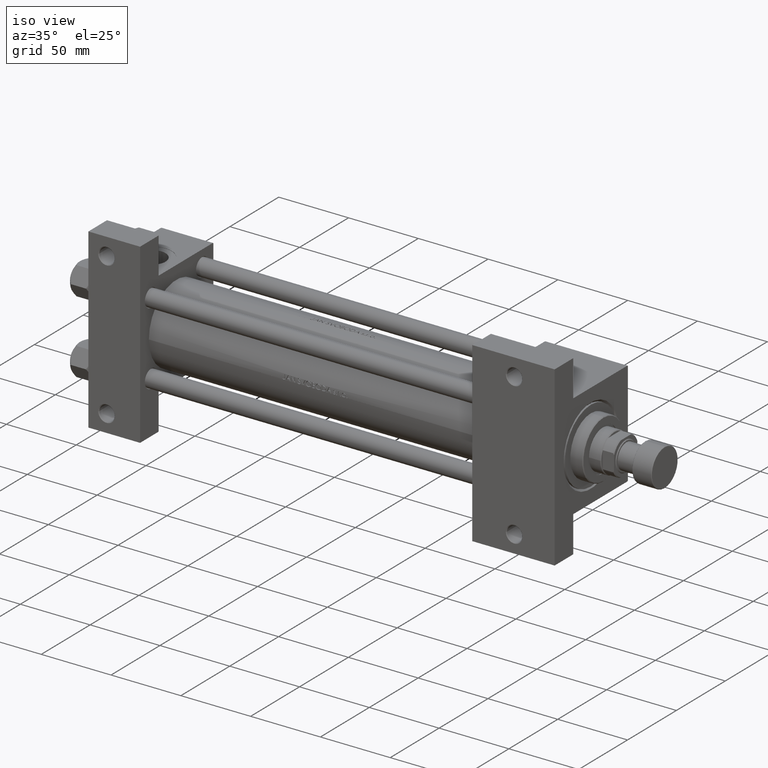
[diagram: clean part render]
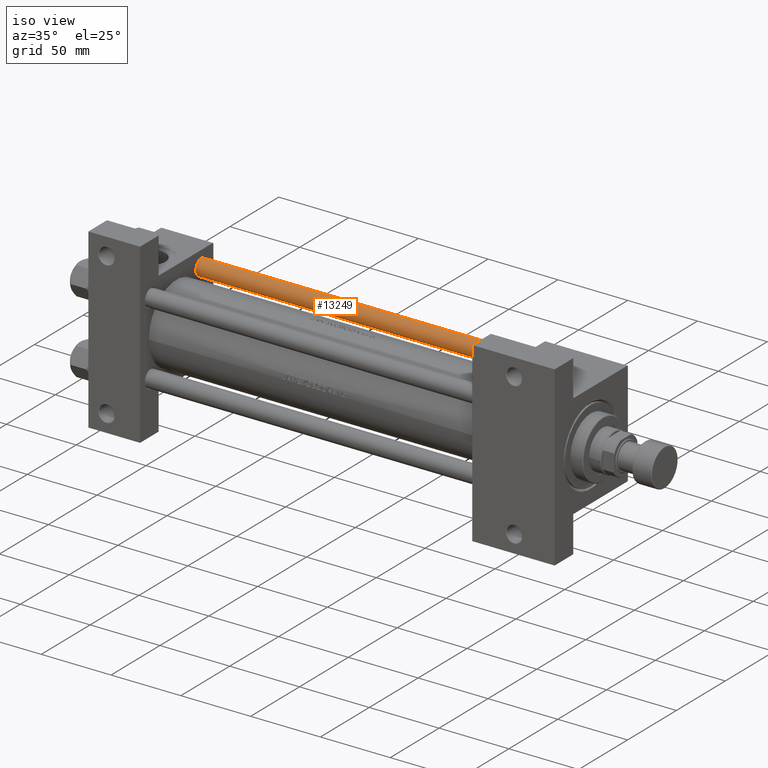
[diagram: same view with one face highlighted and labeled with its STEP entity id]
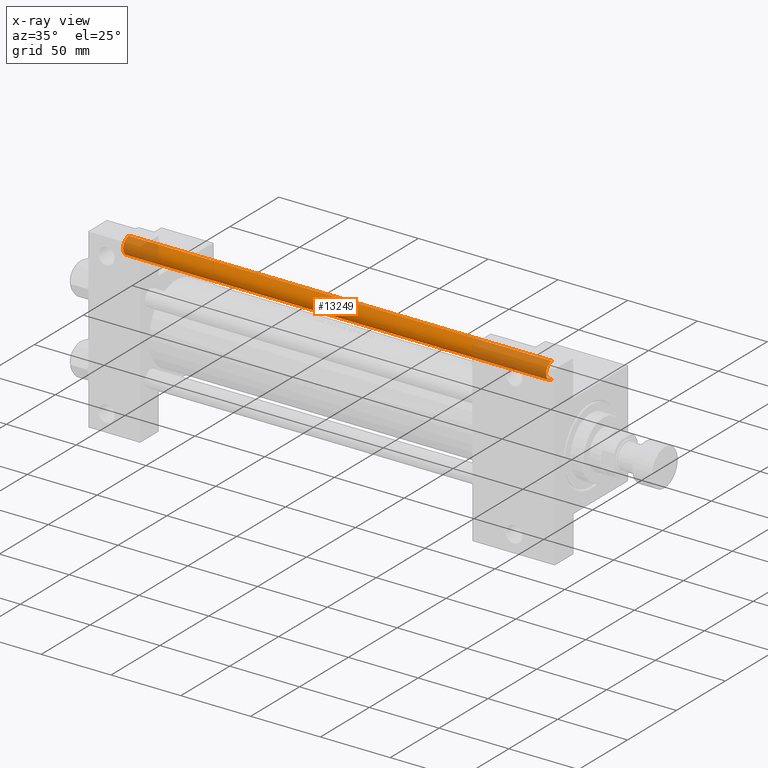
[diagram: x-ray of the same camera — body ghosted, the highlighted face saturated]
A machine part, iso view. The second image highlights one B-rep face of the part: STEP entity #13249.
The next image is the same camera in x-ray: the body ghosted, the highlighted face saturated — about 25% of this face is hidden behind the body in this view.
In plain terms, the highlighted cylindrical surface (edge-blend (fillet) strip) has radius 6 mm, axis along (-1, -0, -0).
Its self-contained STEP definition (entity closure, byte-faithful):
#782 = DIRECTION ( 'NONE',  ( -0.000000000000000000, -0.000000000000000000, 1.000000000000000000 ) ) ;
#1279 = DIRECTION ( 'NONE',  ( 1.000000000000000000, 0.000000000000000000, 0.000000000000000000 ) ) ;
#1944 = CIRCLE ( 'NONE', #30244, 6.000000000000000888 ) ;
#4173 = VERTEX_POINT ( 'NONE', #19332 ) ;
#7180 = CARTESIAN_POINT ( 'NONE',  ( 0.000000000000000000, 0.000000000000000000, 304.0000000000000000 ) ) ;
#8433 = CARTESIAN_POINT ( 'NONE',  ( -6.000000000000000888, 0.000000000000000000, 304.0000000000000000 ) ) ;
#9984 = CARTESIAN_POINT ( 'NONE',  ( 6.000000000000000888, 7.347880794884120722E-16, 303.5000000000000000 ) ) ;
#11012 = CARTESIAN_POINT ( 'NONE',  ( 6.000000000000000888, 7.347880794884120722E-16, 0.4999999999999449329 ) ) ;
#12041 = VERTEX_POINT ( 'NONE', #31762 ) ;
#12413 = AXIS2_PLACEMENT_3D ( 'NONE', #19531, #782, #46827 ) ;
#13249 = ADVANCED_FACE ( 'NONE', ( #26935 ), #42100, .T. ) ;
#15107 = VECTOR ( 'NONE', #26827, 1000.000000000000000 ) ;
#15152 = EDGE_CURVE ( 'NONE', #16441, #23066, #34902, .T. ) ;
#15762 = EDGE_CURVE ( 'NONE', #12041, #4173, #31239, .T. ) ;
#16441 = VERTEX_POINT ( 'NONE', #9984 ) ;
#19332 = CARTESIAN_POINT ( 'NONE',  ( -6.000000000000000888, 0.000000000000000000, 0.4999999999999449329 ) ) ;
#19531 = CARTESIAN_POINT ( 'NONE',  ( 0.000000000000000000, 0.000000000000000000, 0.4999999999999449329 ) ) ;
#22773 = CARTESIAN_POINT ( 'NONE',  ( 6.000000000000000888, 7.347880794884120722E-16, 304.0000000000000000 ) ) ;
#22883 = DIRECTION ( 'NONE',  ( -1.000000000000000000, 0.000000000000000000, 0.000000000000000000 ) ) ;
#23066 = VERTEX_POINT ( 'NONE', #11012 ) ;
#26827 = DIRECTION ( 'NONE',  ( -0.000000000000000000, -0.000000000000000000, -1.000000000000000000 ) ) ;
#26935 = FACE_OUTER_BOUND ( 'NONE', #49213, .T. ) ;
#27795 = CIRCLE ( 'NONE', #12413, 6.000000000000000888 ) ;
#30244 = AXIS2_PLACEMENT_3D ( 'NONE', #47569, #48306, #1279 ) ;
#31239 = LINE ( 'NONE', #8433, #49075 ) ;
#31732 = DIRECTION ( 'NONE',  ( -0.000000000000000000, -0.000000000000000000, -1.000000000000000000 ) ) ;
#31762 = CARTESIAN_POINT ( 'NONE',  ( -6.000000000000000888, 0.000000000000000000, 303.5000000000000000 ) ) ;
#34303 = ORIENTED_EDGE ( 'NONE', *, *, #38636, .T. ) ;
#34902 = LINE ( 'NONE', #22773, #15107 ) ;
#37301 = ORIENTED_EDGE ( 'NONE', *, *, #15152, .F. ) ;
#38301 = DIRECTION ( 'NONE',  ( -0.000000000000000000, -0.000000000000000000, -1.000000000000000000 ) ) ;
#38571 = EDGE_CURVE ( 'NONE', #4173, #23066, #27795, .T. ) ;
#38636 = EDGE_CURVE ( 'NONE', #16441, #12041, #1944, .T. ) ;
#41211 = ORIENTED_EDGE ( 'NONE', *, *, #15762, .T. ) ;
#42100 = CYLINDRICAL_SURFACE ( 'NONE', #44961, 6.000000000000000888 ) ;
#44868 = ORIENTED_EDGE ( 'NONE', *, *, #38571, .T. ) ;
#44961 = AXIS2_PLACEMENT_3D ( 'NONE', #7180, #38301, #22883 ) ;
#46827 = DIRECTION ( 'NONE',  ( 1.000000000000000000, 0.000000000000000000, 0.000000000000000000 ) ) ;
#47569 = CARTESIAN_POINT ( 'NONE',  ( 0.000000000000000000, 0.000000000000000000, 303.5000000000000000 ) ) ;
#48306 = DIRECTION ( 'NONE',  ( 0.000000000000000000, 0.000000000000000000, -1.000000000000000000 ) ) ;
#49075 = VECTOR ( 'NONE', #31732, 1000.000000000000000 ) ;
#49213 = EDGE_LOOP ( 'NONE', ( #37301, #34303, #41211, #44868 ) ) ;